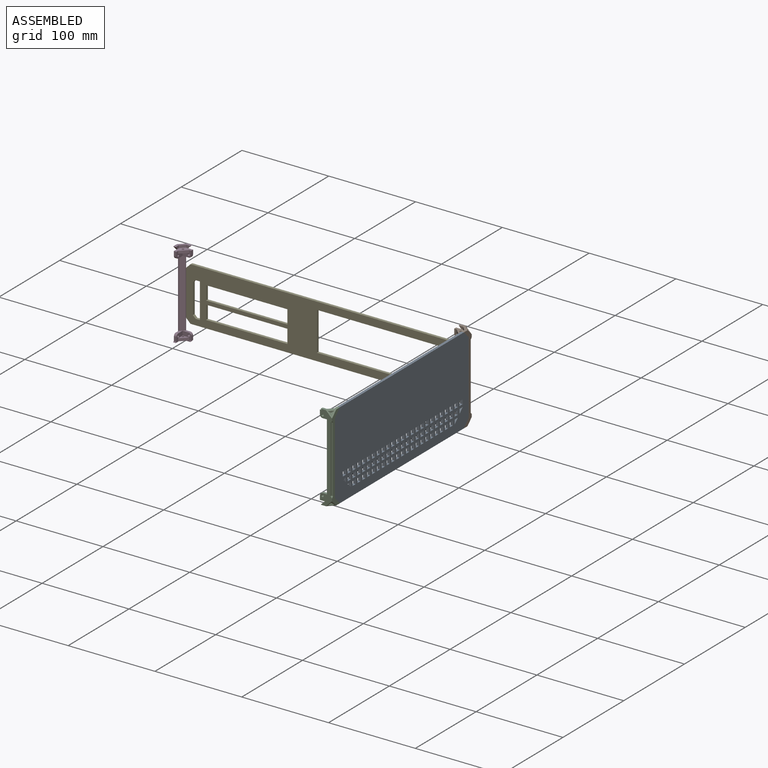
[diagram: assembled view]
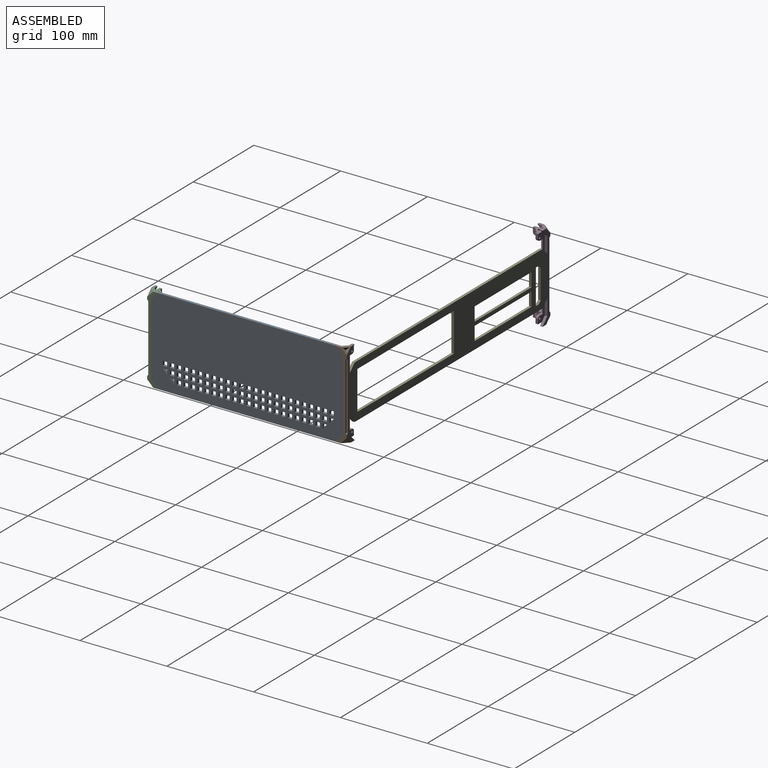
[diagram: assembled view, second angle]
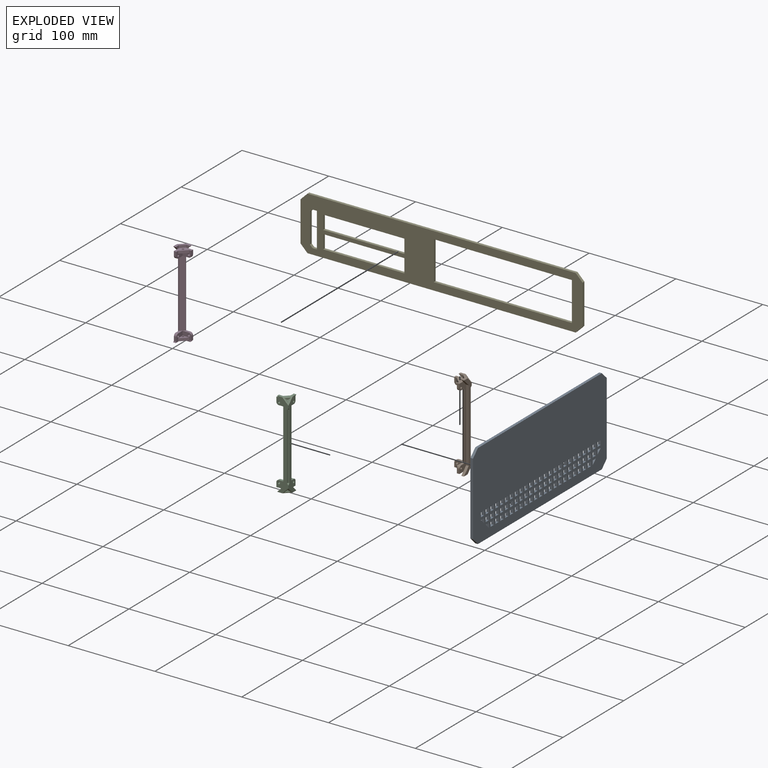
[diagram: exploded view]
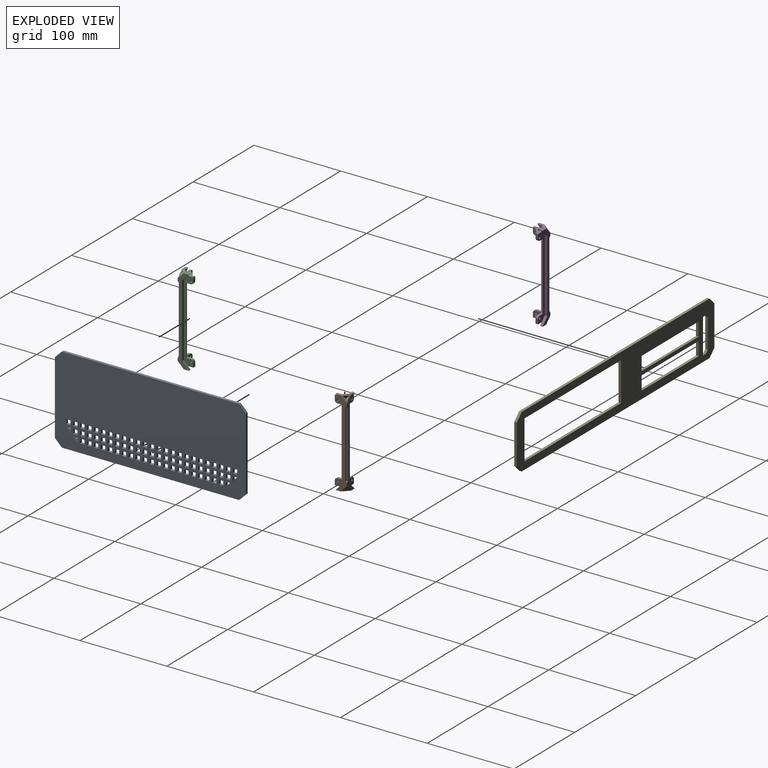
[diagram: exploded view, second angle]
ASSEMBLY  parts=5 mates=4
PART A: 298 faces, bbox 3x220x100 mm
  f0: plane 220x100mm, normal (1,0,0), area 20097mm2, adj f2,f3,f4,f5,f6,f7,f8,f9
  f1: plane 220x100mm, normal (-1,0,0), area 20097mm2, adj f2,f3,f4,f5,f6,f7,f8,f9
  f2: plane 84x3mm, normal (0,-1,0), area 252mm2, adj f0,f1,f8,f9
  f3: plane 204x3mm, normal (0,0,-1), area 612mm2, adj f0,f1,f7,f8
  f4: plane 84x3mm, normal (0,1,0), area 252mm2, adj f0,f1,f6,f7
  f5: plane 204x3mm, normal (0,0,1), area 612mm2, adj f0,f1,f6,f9
  f6: plane 8x8mm, normal (0,0.71,0.71), area 33.9mm2, adj f0,f1,f4,f5
  f7: plane 8x8mm, normal (0,0.71,-0.71), area 33.9mm2, adj f0,f1,f3,f4
  f8: plane 8x8mm, normal (0,-0.71,-0.71), area 33.9mm2, adj f0,f1,f2,f3
  f9: plane 8x8mm, normal (0,-0.71,0.71), area 33.9mm2, adj f0,f1,f2,f5
  f10: plane 5x3mm, normal (0,0,-1), area 15mm2, adj f0,f1,f11,f13
  f11: plane 5x3mm, normal (0,1,0), area 15mm2, adj f0,f1,f10,f12
  f12: plane 5x3mm, normal (0,0,1), area 15mm2, adj f0,f1,f11,f13
  f13: plane 5x3mm, normal (0,-1,0), area 15mm2, adj f0,f1,f10,f12
  f14: plane 5x3mm, normal (0,0,-1), area 15mm2, adj f0,f1,f15,f17
  f15: plane 5x3mm, normal (0,1,0), area 15mm2, adj f0,f1,f14,f16
  f16: plane 5x3mm, normal (0,0,1), area 15mm2, adj f0,f1,f15,f17
  f17: plane 5x3mm, normal (0,-1,0), area 15mm2, adj f0,f1,f14,f16
  f18: plane 5x3mm, normal (0,0,-1), area 15mm2, adj f0,f1,f19,f21
  f19: plane 5x3mm, normal (0,1,0), area 15mm2, adj f0,f1,f18,f20
  f20: plane 5x3mm, normal (0,0,1), area 15mm2, adj f0,f1,f19,f21
  f21: plane 5x3mm, normal (0,-1,0), area 15mm2, adj f0,f1,f18,f20
  f22: plane 5x3mm, normal (0,0,-1), area 15mm2, adj f0,f1,f23,f25
  f23: plane 5x3mm, normal (0,1,0), area 15mm2, adj f0,f1,f22,f24
  f24: plane 5x3mm, normal (0,0,1), area 15mm2, adj f0,f1,f23,f25
  f25: plane 5x3mm, normal (0,-1,0), area 15mm2, adj f0,f1,f22,f24
  f26: plane 5x3mm, normal (0,0,-1), area 15mm2, adj f0,f1,f27,f29
  f27: plane 5x3mm, normal (0,1,0), area 15mm2, adj f0,f1,f26,f28
  f28: plane 5x3mm, normal (0,0,1), area 15mm2, adj f0,f1,f27,f29
  f29: plane 5x3mm, normal (0,-1,0), area 15mm2, adj f0,f1,f26,f28
  f30: plane 5x3mm, normal (0,0,-1), area 15mm2, adj f0,f1,f31,f33
  f31: plane 5x3mm, normal (0,1,0), area 15mm2, adj f0,f1,f30,f32
  f32: plane 5x3mm, normal (0,0,1), area 15mm2, adj f0,f1,f31,f33
  f33: plane 5x3mm, normal (0,-1,0), area 15mm2, adj f0,f1,f30,f32
  f34: plane 5x3mm, normal (0,0,-1), area 15mm2, adj f0,f1,f35,f297
  f35: plane 5x3mm, normal (0,1,0), area 15mm2, adj f0,f1,f34,f297
  f36: plane 5x3mm, normal (0,0,-1), area 15mm2, adj f0,f1,f37,f296
  f37: plane 5x3mm, normal (0,1,0), area 15mm2, adj f0,f1,f36,f296
  f38: plane 5x3mm, normal (0,0,-1), area 15mm2, adj f0,f1,f39,f41
  f39: plane 5x3mm, normal (0,1,0), area 15mm2, adj f0,f1,f38,f40
  f40: plane 5x3mm, normal (0,0,1), area 15mm2, adj f0,f1,f39,f41
  f41: plane 5x3mm, normal (0,-1,0), area 15mm2, adj f0,f1,f38,f40
  f42: plane 5x3mm, normal (0,0,-1), area 15mm2, adj f0,f1,f43,f45
  f43: plane 5x3mm, normal (0,1,0), area 15mm2, adj f0,f1,f42,f44
  f44: plane 5x3mm, normal (0,0,1), area 15mm2, adj f0,f1,f43,f45
  f45: plane 5x3mm, normal (0,-1,0), area 15mm2, adj f0,f1,f42,f44
  f46: plane 5x3mm, normal (0,0,-1), area 15mm2, adj f0,f1,f47,f49
  f47: plane 5x3mm, normal (0,1,0), area 15mm2, adj f0,f1,f46,f48
  f48: plane 5x3mm, normal (0,0,1), area 15mm2, adj f0,f1,f47,f49
  f49: plane 5x3mm, normal (0,-1,0), area 15mm2, adj f0,f1,f46,f48
  f50: plane 5x3mm, normal (0,0,-1), area 15mm2, adj f0,f1,f51,f53
  f51: plane 5x3mm, normal (0,1,0), area 15mm2, adj f0,f1,f50,f52
  f52: plane 5x3mm, normal (0,0,1), area 15mm2, adj f0,f1,f51,f53
  f53: plane 5x3mm, normal (0,-1,0), area 15mm2, adj f0,f1,f50,f52
  f54: plane 5x3mm, normal (0,0,-1), area 15mm2, adj f0,f1,f55,f57
  f55: plane 5x3mm, normal (0,1,0), area 15mm2, adj f0,f1,f54,f56
  f56: plane 5x3mm, normal (0,0,1), area 15mm2, adj f0,f1,f55,f57
  f57: plane 5x3mm, normal (0,-1,0), area 15mm2, adj f0,f1,f54,f56
  f58: plane 5x3mm, normal (0,0,-1), area 15mm2, adj f0,f1,f59,f61
  f59: plane 5x3mm, normal (0,1,0), area 15mm2, adj f0,f1,f58,f60
  f60: plane 5x3mm, normal (0,0,1), area 15mm2, adj f0,f1,f59,f61
  f61: plane 5x3mm, normal (0,-1,0), area 15mm2, adj f0,f1,f58,f60
  f62: plane 5x3mm, normal (0,0,-1), area 15mm2, adj f0,f1,f63,f65
  f63: plane 5x3mm, normal (0,1,0), area 15mm2, adj f0,f1,f62,f64
  f64: plane 5x3mm, normal (0,0,1), area 15mm2, adj f0,f1,f63,f65
  f65: plane 5x3mm, normal (0,-1,0), area 15mm2, adj f0,f1,f62,f64
  f66: plane 5x3mm, normal (0,0,-1), area 15mm2, adj f0,f1,f67,f69
  f67: plane 5x3mm, normal (0,1,0), area 15mm2, adj f0,f1,f66,f68
  f68: plane 5x3mm, normal (0,0,1), area 15mm2, adj f0,f1,f67,f69
  f69: plane 5x3mm, normal (0,-1,0), area 15mm2, adj f0,f1,f66,f68
  f70: plane 5x3mm, normal (0,0,-1), area 15mm2, adj f0,f1,f71,f73
  f71: plane 5x3mm, normal (0,1,0), area 15mm2, adj f0,f1,f70,f72
  f72: plane 5x3mm, normal (0,0,1), area 15mm2, adj f0,f1,f71,f73
  f73: plane 5x3mm, normal (0,-1,0), area 15mm2, adj f0,f1,f70,f72
  f74: plane 5x3mm, normal (0,0,-1), area 15mm2, adj f0,f1,f75,f77
  f75: plane 5x3mm, normal (0,1,0), area 15mm2, adj f0,f1,f74,f76
  f76: plane 5x3mm, normal (0,0,1), area 15mm2, adj f0,f1,f75,f77
  f77: plane 5x3mm, normal (0,-1,0), area 15mm2, adj f0,f1,f74,f76
  f78: plane 5x3mm, normal (0,0,-1), area 15mm2, adj f0,f1,f79,f81
  f79: plane 5x3mm, normal (0,1,0), area 15mm2, adj f0,f1,f78,f80
  f80: plane 5x3mm, normal (0,0,1), area 15mm2, adj f0,f1,f79,f81
  f81: plane 5x3mm, normal (0,-1,0), area 15mm2, adj f0,f1,f78,f80
  f82: plane 5x3mm, normal (0,0,-1), area 15mm2, adj f0,f1,f83,f85
  f83: plane 5x3mm, normal (0,1,0), area 15mm2, adj f0,f1,f82,f84
  f84: plane 5x3mm, normal (0,0,1), area 15mm2, adj f0,f1,f83,f85
  f85: plane 5x3mm, normal (0,-1,0), area 15mm2, adj f0,f1,f82,f84
  f86: plane 5x3mm, normal (0,0,-1), area 15mm2, adj f0,f1,f87,f89
  f87: plane 5x3mm, normal (0,1,0), area 15mm2, adj f0,f1,f86,f88
  f88: plane 5x3mm, normal (0,0,1), area 15mm2, adj f0,f1,f87,f89
  f89: plane 5x3mm, normal (0,-1,0), area 15mm2, adj f0,f1,f86,f88
  f90: plane 5x3mm, normal (0,0,-1), area 15mm2, adj f0,f1,f91,f93
  f91: plane 5x3mm, normal (0,1,0), area 15mm2, adj f0,f1,f90,f92
  f92: plane 5x3mm, normal (0,0,1), area 15mm2, adj f0,f1,f91,f93
  f93: plane 5x3mm, normal (0,-1,0), area 15mm2, adj f0,f1,f90,f92
  f94: plane 5x3mm, normal (0,0,-1), area 15mm2, adj f0,f1,f95,f97
  f95: plane 5x3mm, normal (0,1,0), area 15mm2, adj f0,f1,f94,f96
  f96: plane 5x3mm, normal (0,0,1), area 15mm2, adj f0,f1,f95,f97
  f97: plane 5x3mm, normal (0,-1,0), area 15mm2, adj f0,f1,f94,f96
  f98: plane 5x3mm, normal (0,0,-1), area 15mm2, adj f0,f1,f99,f101
  f99: plane 5x3mm, normal (0,1,0), area 15mm2, adj f0,f1,f98,f100
  f100: plane 5x3mm, normal (0,0,1), area 15mm2, adj f0,f1,f99,f101
  f101: plane 5x3mm, normal (0,-1,0), area 15mm2, adj f0,f1,f98,f100
  f102: plane 5x3mm, normal (0,0,-1), area 15mm2, adj f0,f1,f103,f105
  f103: plane 5x3mm, normal (0,1,0), area 15mm2, adj f0,f1,f102,f104
  f104: plane 5x3mm, normal (0,0,1), area 15mm2, adj f0,f1,f103,f105
  f105: plane 5x3mm, normal (0,-1,0), area 15mm2, adj f0,f1,f102,f104
  f106: plane 5x3mm, normal (0,0,-1), area 15mm2, adj f0,f1,f107,f109
  f107: plane 5x3mm, normal (0,1,0), area 15mm2, adj f0,f1,f106,f108
  f108: plane 5x3mm, normal (0,0,1), area 15mm2, adj f0,f1,f107,f109
  f109: plane 5x3mm, normal (0,-1,0), area 15mm2, adj f0,f1,f106,f108
  f110: plane 5x3mm, normal (0,0,-1), area 15mm2, adj f0,f1,f111,f113
  f111: plane 5x3mm, normal (0,1,0), area 15mm2, adj f0,f1,f110,f112
  f112: plane 5x3mm, normal (0,0,1), area 15mm2, adj f0,f1,f111,f113
  f113: plane 5x3mm, normal (0,-1,0), area 15mm2, adj f0,f1,f110,f112
  f114: plane 5x3mm, normal (0,0,-1), area 15mm2, adj f0,f1,f115,f117
  f115: plane 5x3mm, normal (0,1,0), area 15mm2, adj f0,f1,f114,f116
  f116: plane 5x3mm, normal (0,0,1), area 15mm2, adj f0,f1,f115,f117
  f117: plane 5x3mm, normal (0,-1,0), area 15mm2, adj f0,f1,f114,f116
  f118: plane 5x3mm, normal (0,0,-1), area 15mm2, adj f0,f1,f119,f121
  f119: plane 5x3mm, normal (0,1,0), area 15mm2, adj f0,f1,f118,f120
  f120: plane 5x3mm, normal (0,0,1), area 15mm2, adj f0,f1,f119,f121
  f121: plane 5x3mm, normal (0,-1,0), area 15mm2, adj f0,f1,f118,f120
  f122: plane 5x3mm, normal (0,0,-1), area 15mm2, adj f0,f1,f123,f125
  f123: plane 5x3mm, normal (0,1,0), area 15mm2, adj f0,f1,f122,f124
  f124: plane 5x3mm, normal (0,0,1), area 15mm2, adj f0,f1,f123,f125
  f125: plane 5x3mm, normal (0,-1,0), area 15mm2, adj f0,f1,f122,f124
  f126: plane 5x3mm, normal (0,0,-1), area 15mm2, adj f0,f1,f127,f129
  f127: plane 5x3mm, normal (0,1,0), area 15mm2, adj f0,f1,f126,f128
  f128: plane 5x3mm, normal (0,0,1), area 15mm2, adj f0,f1,f127,f129
  f129: plane 5x3mm, normal (0,-1,0), area 15mm2, adj f0,f1,f126,f128
  f130: plane 5x3mm, normal (0,0,-1), area 15mm2, adj f0,f1,f131,f133
  f131: plane 5x3mm, normal (0,1,0), area 15mm2, adj f0,f1,f130,f132
  f132: plane 5x3mm, normal (0,0,1), area 15mm2, adj f0,f1,f131,f133
  f133: plane 5x3mm, normal (0,-1,0), area 15mm2, adj f0,f1,f130,f132
  f134: plane 5x3mm, normal (0,0,-1), area 15mm2, adj f0,f1,f135,f137
  f135: plane 5x3mm, normal (0,1,0), area 15mm2, adj f0,f1,f134,f136
  f136: plane 5x3mm, normal (0,0,1), area 15mm2, adj f0,f1,f135,f137
  f137: plane 5x3mm, normal (0,-1,0), area 15mm2, adj f0,f1,f134,f136
  f138: plane 5x3mm, normal (0,0,-1), area 15mm2, adj f0,f1,f139,f141
  f139: plane 5x3mm, normal (0,1,0), area 15mm2, adj f0,f1,f138,f140
  f140: plane 5x3mm, normal (0,0,1), area 15mm2, adj f0,f1,f139,f141
  f141: plane 5x3mm, normal (0,-1,0), area 15mm2, adj f0,f1,f138,f140
  f142: plane 5x3mm, normal (0,0,-1), area 15mm2, adj f0,f1,f143,f145
  f143: plane 5x3mm, normal (0,1,0), area 15mm2, adj f0,f1,f142,f144
  f144: plane 5x3mm, normal (0,0,1), area 15mm2, adj f0,f1,f143,f145
  f145: plane 5x3mm, normal (0,-1,0), area 15mm2, adj f0,f1,f142,f144
  f146: plane 5x3mm, normal (0,0,-1), area 15mm2, adj f0,f1,f147,f149
  f147: plane 5x3mm, normal (0,1,0), area 15mm2, adj f0,f1,f146,f148
  f148: plane 5x3mm, normal (0,0,1), area 15mm2, adj f0,f1,f147,f149
  f149: plane 5x3mm, normal (0,-1,0), area 15mm2, adj f0,f1,f146,f148
  f150: plane 5x3mm, normal (0,0,-1), area 15mm2, adj f0,f1,f151,f153
  f151: plane 5x3mm, normal (0,1,0), area 15mm2, adj f0,f1,f150,f152
  f152: plane 5x3mm, normal (0,0,1), area 15mm2, adj f0,f1,f151,f153
  f153: plane 5x3mm, normal (0,-1,0), area 15mm2, adj f0,f1,f150,f152
  f154: plane 5x3mm, normal (0,0,-1), area 15mm2, adj f0,f1,f155,f157
  f155: plane 5x3mm, normal (0,1,0), area 15mm2, adj f0,f1,f154,f156
  f156: plane 5x3mm, normal (0,0,1), area 15mm2, adj f0,f1,f155,f157
  f157: plane 5x3mm, normal (0,-1,0), area 15mm2, adj f0,f1,f154,f156
  f158: plane 5x3mm, normal (0,0,-1), area 15mm2, adj f0,f1,f159,f161
  f159: plane 5x3mm, normal (0,1,0), area 15mm2, adj f0,f1,f158,f160
  f160: plane 5x3mm, normal (0,0,1), area 15mm2, adj f0,f1,f159,f161
  f161: plane 5x3mm, normal (0,-1,0), area 15mm2, adj f0,f1,f158,f160
  f162: plane 5x3mm, normal (0,0,-1), area 15mm2, adj f0,f1,f163,f165
  f163: plane 5x3mm, normal (0,1,0), area 15mm2, adj f0,f1,f162,f164
  f164: plane 5x3mm, normal (0,0,1), area 15mm2, adj f0,f1,f163,f165
  f165: plane 5x3mm, normal (0,-1,0), area 15mm2, adj f0,f1,f162,f164
  f166: plane 5x3mm, normal (0,0,-1), area 15mm2, adj f0,f1,f167,f169
  f167: plane 5x3mm, normal (0,1,0), area 15mm2, adj f0,f1,f166,f168
  f168: plane 5x3mm, normal (0,0,1), area 15mm2, adj f0,f1,f167,f169
  f169: plane 5x3mm, normal (0,-1,0), area 15mm2, adj f0,f1,f166,f168
  f170: plane 5x3mm, normal (0,0,-1), area 15mm2, adj f0,f1,f171,f173
  f171: plane 5x3mm, normal (0,1,0), area 15mm2, adj f0,f1,f170,f172
  f172: plane 5x3mm, normal (0,0,1), area 15mm2, adj f0,f1,f171,f173
  f173: plane 5x3mm, normal (0,-1,0), area 15mm2, adj f0,f1,f170,f172
  f174: plane 5x3mm, normal (0,0,-1), area 15mm2, adj f0,f1,f175,f177
  f175: plane 5x3mm, normal (0,1,0), area 15mm2, adj f0,f1,f174,f176
  f176: plane 5x3mm, normal (0,0,1), area 15mm2, adj f0,f1,f175,f177
  f177: plane 5x3mm, normal (0,-1,0), area 15mm2, adj f0,f1,f174,f176
  f178: plane 5x3mm, normal (0,0,-1), area 15mm2, adj f0,f1,f179,f181
  f179: plane 5x3mm, normal (0,1,0), area 15mm2, adj f0,f1,f178,f180
  f180: plane 5x3mm, normal (0,0,1), area 15mm2, adj f0,f1,f179,f181
  f181: plane 5x3mm, normal (0,-1,0), area 15mm2, adj f0,f1,f178,f180
  f182: plane 5x3mm, normal (0,0,-1), area 15mm2, adj f0,f1,f183,f185
  f183: plane 5x3mm, normal (0,1,0), area 15mm2, adj f0,f1,f182,f184
  f184: plane 5x3mm, normal (0,0,1), area 15mm2, adj f0,f1,f183,f185
  f185: plane 5x3mm, normal (0,-1,0), area 15mm2, adj f0,f1,f182,f184
  f186: plane 5x3mm, normal (0,0,-1), area 15mm2, adj f0,f1,f187,f189
  f187: plane 5x3mm, normal (0,1,0), area 15mm2, adj f0,f1,f186,f188
  f188: plane 5x3mm, normal (0,0,1), area 15mm2, adj f0,f1,f187,f189
  f189: plane 5x3mm, normal (0,-1,0), area 15mm2, adj f0,f1,f186,f188
  f190: plane 5x3mm, normal (0,0,-1), area 15mm2, adj f0,f1,f191,f295
  f191: plane 5x3mm, normal (0,-1,0), area 15mm2, adj f0,f1,f190,f295
  f192: plane 5x3mm, normal (0,0,-1), area 15mm2, adj f0,f1,f193,f195
  f193: plane 5x3mm, normal (0,1,0), area 15mm2, adj f0,f1,f192,f194
  f194: plane 5x3mm, normal (0,0,1), area 15mm2, adj f0,f1,f193,f195
  f195: plane 5x3mm, normal (0,-1,0), area 15mm2, adj f0,f1,f192,f194
  f196: plane 5x3mm, normal (0,0,-1), area 15mm2, adj f0,f1,f197,f294
  f197: plane 5x3mm, normal (0,-1,0), area 15mm2, adj f0,f1,f196,f294
  f198: plane 5x3mm, normal (0,0,-1), area 15mm2, adj f0,f1,f199,f201
  f199: plane 5x3mm, normal (0,1,0), area 15mm2, adj f0,f1,f198,f200
  f200: plane 5x3mm, normal (0,0,1), area 15mm2, adj f0,f1,f199,f201
  f201: plane 5x3mm, normal (0,-1,0), area 15mm2, adj f0,f1,f198,f200
  f202: plane 5x3mm, normal (0,0,-1), area 15mm2, adj f0,f1,f203,f205
  f203: plane 5x3mm, normal (0,1,0), area 15mm2, adj f0,f1,f202,f204
  f204: plane 5x3mm, normal (0,0,1), area 15mm2, adj f0,f1,f203,f205
  f205: plane 5x3mm, normal (0,-1,0), area 15mm2, adj f0,f1,f202,f204
  f206: plane 5x3mm, normal (0,0,-1), area 15mm2, adj f0,f1,f207,f209
  f207: plane 5x3mm, normal (0,1,0), area 15mm2, adj f0,f1,f206,f208
  f208: plane 5x3mm, normal (0,0,1), area 15mm2, adj f0,f1,f207,f209
  f209: plane 5x3mm, normal (0,-1,0), area 15mm2, adj f0,f1,f206,f208
  f210: plane 5x3mm, normal (0,0,-1), area 15mm2, adj f0,f1,f211,f213
  f211: plane 5x3mm, normal (0,1,0), area 15mm2, adj f0,f1,f210,f212
  f212: plane 5x3mm, normal (0,0,1), area 15mm2, adj f0,f1,f211,f213
  f213: plane 5x3mm, normal (0,-1,0), area 15mm2, adj f0,f1,f210,f212
  f214: plane 5x3mm, normal (0,0,-1), area 15mm2, adj f0,f1,f215,f217
  f215: plane 5x3mm, normal (0,1,0), area 15mm2, adj f0,f1,f214,f216
  f216: plane 5x3mm, normal (0,0,1), area 15mm2, adj f0,f1,f215,f217
  f217: plane 5x3mm, normal (0,-1,0), area 15mm2, adj f0,f1,f214,f216
  f218: plane 5x3mm, normal (0,0,-1), area 15mm2, adj f0,f1,f219,f221
  f219: plane 5x3mm, normal (0,1,0), area 15mm2, adj f0,f1,f218,f220
  f220: plane 5x3mm, normal (0,0,1), area 15mm2, adj f0,f1,f219,f221
  f221: plane 5x3mm, normal (0,-1,0), area 15mm2, adj f0,f1,f218,f220
  f222: plane 5x3mm, normal (0,0,-1), area 15mm2, adj f0,f1,f223,f225
  f223: plane 5x3mm, normal (0,1,0), area 15mm2, adj f0,f1,f222,f224
  f224: plane 5x3mm, normal (0,0,1), area 15mm2, adj f0,f1,f223,f225
  f225: plane 5x3mm, normal (0,-1,0), area 15mm2, adj f0,f1,f222,f224
  f226: plane 5x3mm, normal (0,0,-1), area 15mm2, adj f0,f1,f227,f229
  f227: plane 5x3mm, normal (0,1,0), area 15mm2, adj f0,f1,f226,f228
  f228: plane 5x3mm, normal (0,0,1), area 15mm2, adj f0,f1,f227,f229
  f229: plane 5x3mm, normal (0,-1,0), area 15mm2, adj f0,f1,f226,f228
  f230: plane 5x3mm, normal (0,0,-1), area 15mm2, adj f0,f1,f231,f233
  f231: plane 5x3mm, normal (0,1,0), area 15mm2, adj f0,f1,f230,f232
  f232: plane 5x3mm, normal (0,0,1), area 15mm2, adj f0,f1,f231,f233
  f233: plane 5x3mm, normal (0,-1,0), area 15mm2, adj f0,f1,f230,f232
  f234: plane 5x3mm, normal (0,0,-1), area 15mm2, adj f0,f1,f235,f237
  f235: plane 5x3mm, normal (0,1,0), area 15mm2, adj f0,f1,f234,f236
  f236: plane 5x3mm, normal (0,0,1), area 15mm2, adj f0,f1,f235,f237
  f237: plane 5x3mm, normal (0,-1,0), area 15mm2, adj f0,f1,f234,f236
  f238: plane 5x3mm, normal (0,0,-1), area 15mm2, adj f0,f1,f239,f241
  f239: plane 5x3mm, normal (0,1,0), area 15mm2, adj f0,f1,f238,f240
  f240: plane 5x3mm, normal (0,0,1), area 15mm2, adj f0,f1,f239,f241
  f241: plane 5x3mm, normal (0,-1,0), area 15mm2, adj f0,f1,f238,f240
  f242: plane 5x3mm, normal (0,0,-1), area 15mm2, adj f0,f1,f243,f245
  f243: plane 5x3mm, normal (0,1,0), area 15mm2, adj f0,f1,f242,f244
  f244: plane 5x3mm, normal (0,0,1), area 15mm2, adj f0,f1,f243,f245
  f245: plane 5x3mm, normal (0,-1,0), area 15mm2, adj f0,f1,f242,f244
  f246: plane 5x3mm, normal (0,0,-1), area 15mm2, adj f0,f1,f247,f249
  f247: plane 5x3mm, normal (0,1,0), area 15mm2, adj f0,f1,f246,f248
  f248: plane 5x3mm, normal (0,0,1), area 15mm2, adj f0,f1,f247,f249
  f249: plane 5x3mm, normal (0,-1,0), area 15mm2, adj f0,f1,f246,f248
  f250: plane 5x3mm, normal (0,0,-1), area 15mm2, adj f0,f1,f251,f253
  f251: plane 5x3mm, normal (0,1,0), area 15mm2, adj f0,f1,f250,f252
  f252: plane 5x3mm, normal (0,0,1), area 15mm2, adj f0,f1,f251,f253
  f253: plane 5x3mm, normal (0,-1,0), area 15mm2, adj f0,f1,f250,f252
  f254: plane 5x3mm, normal (0,0,-1), area 15mm2, adj f0,f1,f255,f257
  f255: plane 5x3mm, normal (0,1,0), area 15mm2, adj f0,f1,f254,f256
  f256: plane 5x3mm, normal (0,0,1), area 15mm2, adj f0,f1,f255,f257
  f257: plane 5x3mm, normal (0,-1,0), area 15mm2, adj f0,f1,f254,f256
  f258: plane 5x3mm, normal (0,0,-1), area 15mm2, adj f0,f1,f259,f261
  f259: plane 5x3mm, normal (0,1,0), area 15mm2, adj f0,f1,f258,f260
  f260: plane 5x3mm, normal (0,0,1), area 15mm2, adj f0,f1,f259,f261
  f261: plane 5x3mm, normal (0,-1,0), area 15mm2, adj f0,f1,f258,f260
  f262: plane 5x3mm, normal (0,0,-1), area 15mm2, adj f0,f1,f263,f265
  f263: plane 5x3mm, normal (0,1,0), area 15mm2, adj f0,f1,f262,f264
  f264: plane 5x3mm, normal (0,0,1), area 15mm2, adj f0,f1,f263,f265
  f265: plane 5x3mm, normal (0,-1,0), area 15mm2, adj f0,f1,f262,f264
  f266: plane 5x3mm, normal (0,0,-1), area 15mm2, adj f0,f1,f267,f269
  f267: plane 5x3mm, normal (0,1,0), area 15mm2, adj f0,f1,f266,f268
  f268: plane 5x3mm, normal (0,0,1), area 15mm2, adj f0,f1,f267,f269
  f269: plane 5x3mm, normal (0,-1,0), area 15mm2, adj f0,f1,f266,f268
  f270: plane 5x3mm, normal (0,0,-1), area 15mm2, adj f0,f1,f271,f273
  f271: plane 5x3mm, normal (0,1,0), area 15mm2, adj f0,f1,f270,f272
  f272: plane 5x3mm, normal (0,0,1), area 15mm2, adj f0,f1,f271,f273
  f273: plane 5x3mm, normal (0,-1,0), area 15mm2, adj f0,f1,f270,f272
  f274: plane 5x3mm, normal (0,0,-1), area 15mm2, adj f0,f1,f275,f277
  f275: plane 5x3mm, normal (0,1,0), area 15mm2, adj f0,f1,f274,f276
  f276: plane 5x3mm, normal (0,0,1), area 15mm2, adj f0,f1,f275,f277
  f277: plane 5x3mm, normal (0,-1,0), area 15mm2, adj f0,f1,f274,f276
  f278: plane 5x3mm, normal (0,0,-1), area 15mm2, adj f0,f1,f279,f281
  f279: plane 5x3mm, normal (0,1,0), area 15mm2, adj f0,f1,f278,f280
  f280: plane 5x3mm, normal (0,0,1), area 15mm2, adj f0,f1,f279,f281
  f281: plane 5x3mm, normal (0,-1,0), area 15mm2, adj f0,f1,f278,f280
  f282: plane 5x3mm, normal (0,0,-1), area 15mm2, adj f0,f1,f283,f285
  f283: plane 5x3mm, normal (0,1,0), area 15mm2, adj f0,f1,f282,f284
  f284: plane 5x3mm, normal (0,0,1), area 15mm2, adj f0,f1,f283,f285
  f285: plane 5x3mm, normal (0,-1,0), area 15mm2, adj f0,f1,f282,f284
  f286: plane 5x3mm, normal (0,0,-1), area 15mm2, adj f0,f1,f287,f289
  f287: plane 5x3mm, normal (0,1,0), area 15mm2, adj f0,f1,f286,f288
  f288: plane 5x3mm, normal (0,0,1), area 15mm2, adj f0,f1,f287,f289
  f289: plane 5x3mm, normal (0,-1,0), area 15mm2, adj f0,f1,f286,f288
  f290: plane 5x3mm, normal (0,0,-1), area 15mm2, adj f0,f1,f291,f293
  f291: plane 5x3mm, normal (0,1,0), area 15mm2, adj f0,f1,f290,f292
  f292: plane 5x3mm, normal (0,0,1), area 15mm2, adj f0,f1,f291,f293
  f293: plane 5x3mm, normal (0,-1,0), area 15mm2, adj f0,f1,f290,f292
  f294: plane 5x5mm, normal (0,0.71,0.71), area 21.2mm2, adj f0,f1,f196,f197
  f295: plane 5x5mm, normal (0,0.71,0.71), area 21.2mm2, adj f0,f1,f190,f191
  f296: plane 5x5mm, normal (0,-0.71,0.71), area 21.2mm2, adj f0,f1,f36,f37
  f297: plane 5x5mm, normal (0,-0.71,0.71), area 21.2mm2, adj f0,f1,f34,f35
PART B: 67 faces, bbox 16x16x100 mm
  f0: plane 10x10mm, normal (0,0,1), area 33.9mm2, adj f4,f7,f8,f22,f25,f27,f64,f65
  f1: plane 10x10mm, normal (0,0,-1), area 33.9mm2, adj f7,f8,f35,f47,f50,f52,f64,f65
  f2: plane 7.32x7.31mm, normal (0,0,1), area 22.8mm2, adj f3,f4,f5,f19,f20,f25
  f3: plane 3.66x3.4mm, normal (-0.68,0.73,0), area 15mm2, adj f2,f19,f21,f25
  f4: plane 10x8mm, normal (0,1,0), area 51.2mm2, adj f0,f2,f5,f21,f22,f23,f24,f25
  f5: plane 3.76x3.49mm, normal (-0.73,0.68,0), area 15.4mm2, adj f2,f4,f19,f21
  f6: plane 5x3mm, normal (0,1,0), area 10.5mm2, adj f9,f14,f15,f21
  f7: plane 94x11mm, normal (1,0,0), area 371.3mm2, adj f0,f1,f13,f16,f21,f26,f27,f28
  f8: plane 94x11mm, normal (0,-1,0), area 371.3mm2, adj f0,f1,f10,f15,f21,f22,f23,f24
  f9: plane 5x5mm, normal (-0.71,0.71,0), area 21.2mm2, adj f6,f14,f17,f21
  f10: plane 84x3mm, normal (-1,0,0), area 252mm2, adj f8,f11,f15,f40
  f11: plane 100x13mm, normal (0,-1,0), area 381.9mm2, adj f10,f12,f14,f15,f18,f39,f40,f43
  f12: plane 100x13mm, normal (1,0,0), area 381.9mm2, adj f11,f13,f14,f16,f18,f39,f41,f43
  f13: plane 84x3mm, normal (0,1,0), area 252mm2, adj f7,f12,f16,f41
  f14: plane 13x13mm, normal (0,0,-1), area 57mm2, adj f6,f9,f11,f12,f15,f16,f17,f18
  f15: plane 8x8mm, normal (-0.71,0,0.71), area 33.9mm2, adj f6,f8,f10,f11,f14
  f16: plane 8x8mm, normal (0,0.71,0.71), area 33.9mm2, adj f7,f12,f13,f14,f17
  f17: plane 5x3mm, normal (-1,0,0), area 10.5mm2, adj f9,f14,f16,f21
  f18: plane 7x7mm, normal (0.58,-0.58,-0.58), area 24.5mm2, adj f11,f12,f14,f30,f31,f32
  f19: cylinder r=3mm len=3mm, axis (0,0,-1), area 0.7mm2, adj f2,f3,f5,f21
  f20: cylinder r=1.25mm len=3mm, axis (0,0,-1), area 23.6mm2, adj f2,f21
  f21: plane 13x13mm, normal (0,0,-1), area 78.3mm2, adj f3,f4,f5,f6,f7,f8,f9,f17
  f22: cylinder r=3mm len=3mm, axis (0,-1,0), area 13.7mm2, adj f0,f4,f8,f23
  f23: plane 5x2.9mm, normal (-1,0,0), area 14.5mm2, adj f4,f8,f21,f22
  f24: cylinder r=1.25mm len=2.9mm, axis (0,-1,0), area 22.8mm2, adj f4,f8
  f25: plane 10.1x8mm, normal (-1,0,0), area 52mm2, adj f0,f2,f3,f4,f21,f26,f27,f28
  f26: plane 5x3mm, normal (0,1,0), area 15mm2, adj f7,f21,f25,f27
  f27: cylinder r=3mm len=3mm, axis (1,0,0), area 14.1mm2, adj f0,f7,f25,f26
  f28: cylinder r=1.25mm len=3mm, axis (1,0,0), area 23.6mm2, adj f7,f25
  f29: plane 0.88x0.88mm, normal (0.58,-0.58,-0.58), area 0.7mm2, adj f30,f31,f32
  f30: plane 4.55x4.55mm, normal (0.7,-0.7,0.17), area 8.1mm2, adj f18,f29,f31,f32
  f31: plane 4.55x4.55mm, normal (0.7,0.17,-0.7), area 8.1mm2, adj f18,f29,f30,f32
  f32: plane 4.55x4.55mm, normal (-0.17,-0.7,-0.7), area 8.1mm2, adj f18,f29,f30,f31
  f33: plane 7.32x7.31mm, normal (0,0,-1), area 22.8mm2, adj f34,f35,f36,f44,f45,f50
  f34: plane 3.66x3.4mm, normal (-0.68,0.73,0), area 15mm2, adj f33,f44,f46,f50
  f35: plane 10x8mm, normal (0,1,0), area 51.2mm2, adj f1,f33,f36,f46,f47,f48,f49,f50
  f36: plane 3.76x3.49mm, normal (-0.73,0.68,0), area 15.4mm2, adj f33,f35,f44,f46
  f37: plane 5x3mm, normal (0,1,0), area 10.5mm2, adj f38,f39,f40,f46
  f38: plane 5x5mm, normal (-0.71,0.71,0), area 21.2mm2, adj f37,f39,f42,f46
  f39: plane 13x13mm, normal (0,0,1), area 57mm2, adj f11,f12,f37,f38,f40,f41,f42,f43
  f40: plane 8x8mm, normal (-0.71,0,-0.71), area 33.9mm2, adj f8,f10,f11,f37,f39
  f41: plane 8x8mm, normal (0,0.71,-0.71), area 33.9mm2, adj f7,f12,f13,f39,f42
  f42: plane 5x3mm, normal (-1,0,0), area 10.5mm2, adj f38,f39,f41,f46
  f43: plane 7x7mm, normal (0.58,-0.58,0.58), area 24.5mm2, adj f11,f12,f39,f55,f56,f57
  f44: cylinder r=3mm len=3mm, axis (0,0,1), area 0.7mm2, adj f33,f34,f36,f46
  f45: cylinder r=1.25mm len=3mm, axis (0,0,1), area 23.6mm2, adj f33,f46
  f46: plane 13x13mm, normal (0,0,1), area 78.3mm2, adj f7,f8,f34,f35,f36,f37,f38,f42
  f47: cylinder r=3mm len=3mm, axis (0,-1,0), area 13.7mm2, adj f1,f8,f35,f48
  f48: plane 5x2.9mm, normal (-1,0,0), area 14.5mm2, adj f8,f35,f46,f47
  f49: cylinder r=1.25mm len=2.9mm, axis (0,-1,0), area 22.8mm2, adj f8,f35
  f50: plane 10.1x8mm, normal (-1,0,0), area 52mm2, adj f1,f33,f34,f35,f46,f51,f52,f53
  f51: plane 5x3mm, normal (0,1,0), area 15mm2, adj f7,f46,f50,f52
  f52: cylinder r=3mm len=3mm, axis (1,0,0), area 14.1mm2, adj f1,f7,f50,f51
  f53: cylinder r=1.25mm len=3mm, axis (1,0,0), area 23.6mm2, adj f7,f50
  f54: plane 0.88x0.88mm, normal (0.58,-0.58,0.58), area 0.7mm2, adj f55,f56,f57
  f55: plane 4.55x4.55mm, normal (0.7,-0.7,-0.17), area 8.1mm2, adj f43,f54,f56,f57
  f56: plane 4.55x4.55mm, normal (0.7,0.17,0.7), area 8.1mm2, adj f43,f54,f55,f57
  f57: plane 4.55x4.55mm, normal (-0.17,-0.7,0.7), area 8.1mm2, adj f43,f54,f55,f56
  f58: plane 76.6x1.7mm, normal (1,0,0), area 130.2mm2, adj f11,f59,f60,f63
  f59: plane 76.6x1.7mm, normal (0,-1,0), area 130.2mm2, adj f12,f58,f61,f62
  f60: plane 1.7x1.7mm, normal (0.71,0,-0.71), area 2mm2, adj f11,f58,f61
  f61: plane 1.7x1.7mm, normal (0,-0.71,-0.71), area 2mm2, adj f12,f59,f60
  f62: plane 1.7x1.7mm, normal (0,-0.71,0.71), area 2mm2, adj f12,f59,f63
  f63: plane 1.7x1.7mm, normal (0.71,0,0.71), area 2mm2, adj f11,f58,f62
  f64: plane 78x4.15mm, normal (-0.71,0.71,0), area 457.9mm2, adj f0,f1,f65,f66
  f65: plane 78x0.85mm, normal (-1,0,0), area 66.2mm2, adj f0,f1,f8,f64
  f66: plane 78x0.85mm, normal (0,1,0), area 66.2mm2, adj f0,f1,f7,f64
PART C: same geometry as B
PART D: same geometry as B
PART E: 28 faces, bbox 325x3x62 mm
  f0: plane 325x62mm, normal (0,-1,0), area 9622.4mm2, adj f2,f3,f4,f5,f6,f7,f8,f9
  f1: plane 325x62mm, normal (0,1,0), area 9622.4mm2, adj f2,f3,f4,f5,f6,f7,f8,f9
  f2: plane 46x3mm, normal (-1,0,0), area 138mm2, adj f0,f1,f8,f9
  f3: plane 309x3mm, normal (0,0,-1), area 927mm2, adj f0,f1,f6,f8
  f4: plane 46x3mm, normal (1,0,0), area 138mm2, adj f0,f1,f6,f7
  f5: plane 309x3mm, normal (0,0,1), area 927mm2, adj f0,f1,f7,f9
  f6: plane 8x8mm, normal (0.71,0,-0.71), area 33.9mm2, adj f0,f1,f3,f4
  f7: plane 8x8mm, normal (0.71,0,0.71), area 33.9mm2, adj f0,f1,f4,f5
  f8: plane 8x8mm, normal (-0.71,0,-0.71), area 33.9mm2, adj f0,f1,f2,f3
  f9: plane 8x8mm, normal (-0.71,0,0.71), area 33.9mm2, adj f0,f1,f2,f5
  f10: plane 5x3mm, normal (0,0,1), area 15mm2, adj f0,f1,f13,f27
  f11: plane 34.2x3mm, normal (-1,0,0), area 102.6mm2, adj f0,f1,f26,f27
  f12: plane 5x3mm, normal (0,0,-1), area 15mm2, adj f0,f1,f13,f26
  f13: plane 40.2x3mm, normal (1,0,0), area 120.6mm2, adj f0,f1,f10,f12
  f14: plane 93.7x3mm, normal (0,0,1), area 281.1mm2, adj f0,f1,f15,f17
  f15: plane 15.9x3mm, normal (-1,0,0), area 47.7mm2, adj f0,f1,f14,f16
  f16: plane 93.7x3mm, normal (0,0,-1), area 281.1mm2, adj f0,f1,f15,f17
  f17: plane 15.9x3mm, normal (1,0,0), area 47.7mm2, adj f0,f1,f14,f16
  f18: plane 93.7x3mm, normal (0,0,1), area 281.1mm2, adj f0,f1,f19,f21
  f19: plane 15.9x3mm, normal (-1,0,0), area 47.7mm2, adj f0,f1,f18,f20
  f20: plane 93.7x3mm, normal (0,0,-1), area 281.1mm2, adj f0,f1,f19,f21
  f21: plane 15.9x3mm, normal (1,0,0), area 47.7mm2, adj f0,f1,f18,f20
  f22: plane 44.7x3mm, normal (-1,0,0), area 134.1mm2, adj f0,f1,f23,f25
  f23: plane 159x3mm, normal (0,0,-1), area 477mm2, adj f0,f1,f22,f24
  f24: plane 44.7x3mm, normal (1,0,0), area 134.1mm2, adj f0,f1,f23,f25
  f25: plane 159x3mm, normal (0,0,1), area 477mm2, adj f0,f1,f22,f24
  f26: plane 3x3mm, normal (-0.71,0,-0.71), area 12.7mm2, adj f0,f1,f11,f12
  f27: plane 3x3mm, normal (-0.71,0,0.71), area 12.7mm2, adj f0,f1,f10,f11
PLACE A t=(-5.79,319.49,-20.48)mm
PLACE B rot(axis=(0,0,1),90deg) t=(2.03,200.63,-16.69)mm
PLACE C t=(-27.47,-9.51,-16.69)mm fixed
PLACE D rot(axis=(0,0,1),180deg) t=(-313.1,230.13,-16.69)mm
PLACE E rot(axis=(0,0,1),180deg) t=(-77.6,222.31,7.1)mm
MATE fastened A.f1 <-> C.f7  axis (-1,0,0) through (-5.79,0.31,33.31)mm
MATE fastened B.f8 <-> A.f1  axis (1,0,0) through (-5.79,220.31,33.31)mm
MATE fastened E.f1 <-> D.f8  axis (0,-1,0) through (-332.79,222.31,33.31)mm
MATE fastened E.f1 <-> B.f7  axis (0,-1,0) through (-7.79,222.31,33.31)mm
